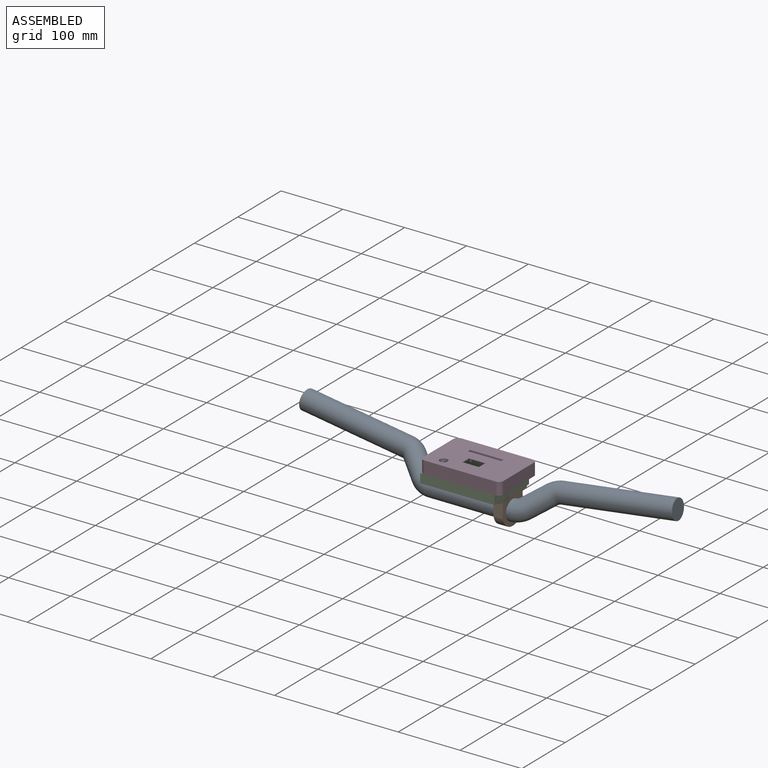
[diagram: assembled view]
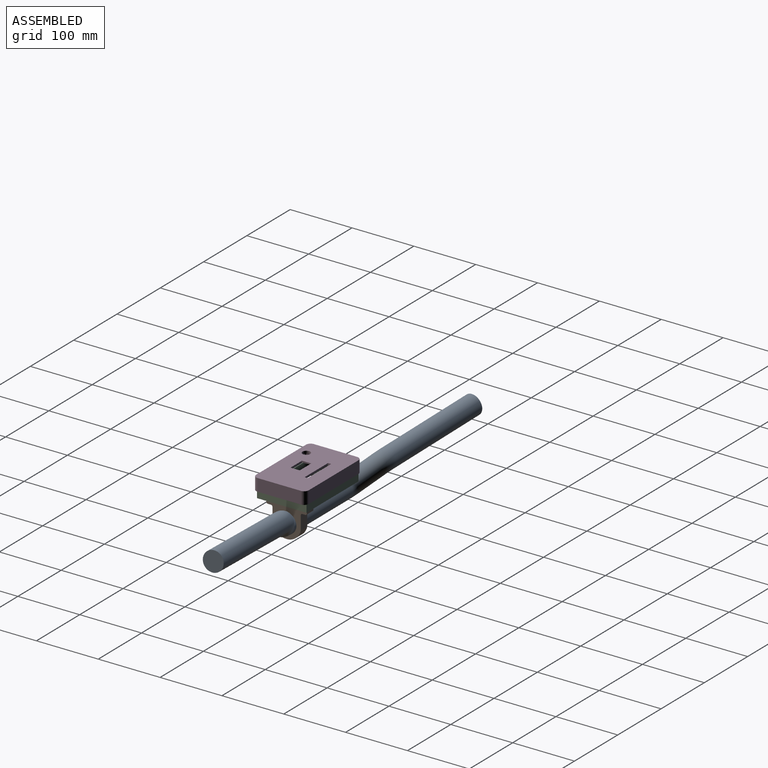
[diagram: assembled view, second angle]
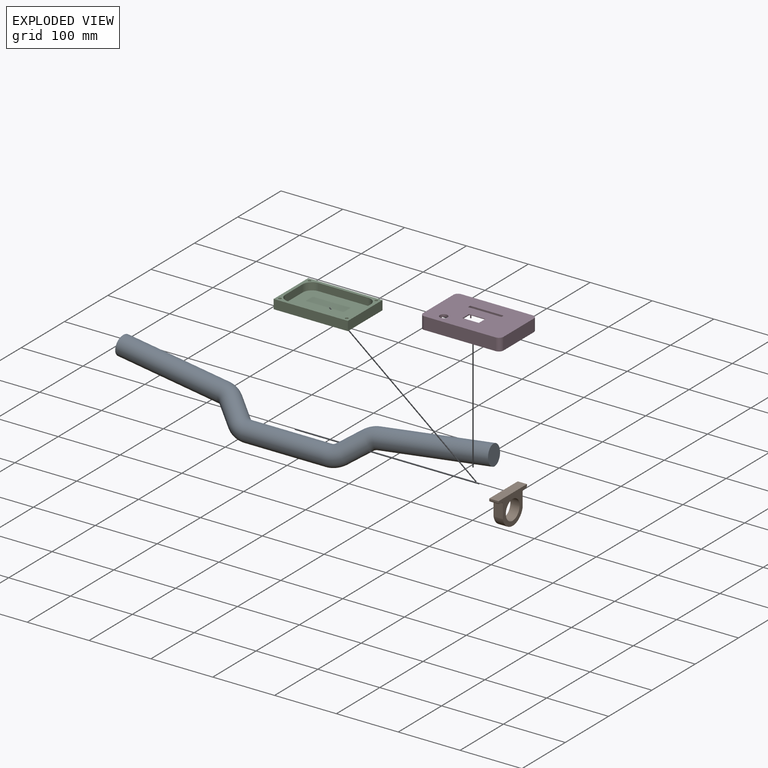
[diagram: exploded view]
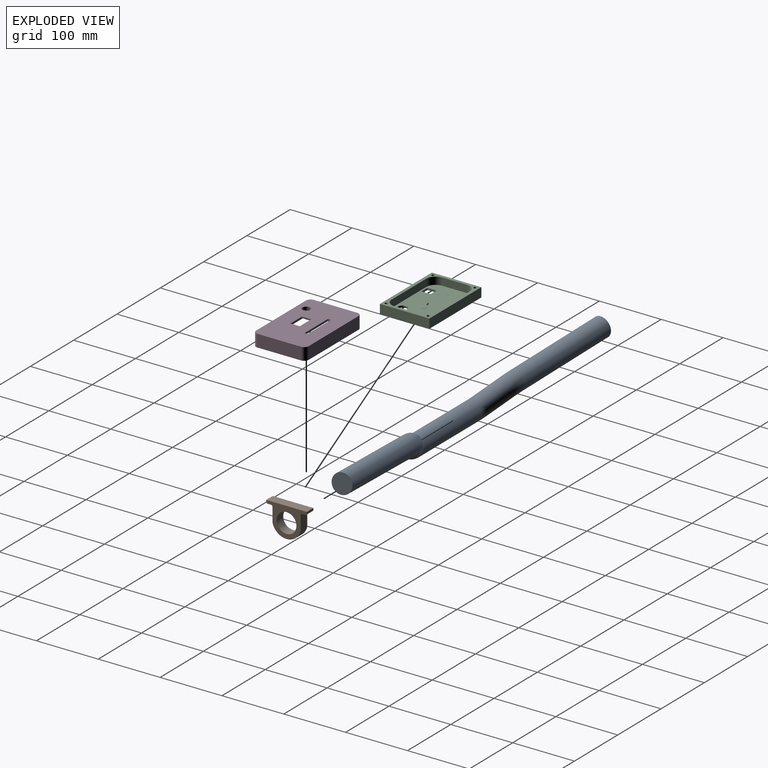
[diagram: exploded view, second angle]
FCSTD DOCUMENT  (FreeCAD 0.20R27319 (Git))
Label: Riserbar
License: All rights reserved
LicenseURL: http://en.wikipedia.org/wiki/All_rights_reserved
objects: Sketcher::SketchObject×6, PartDesign::Body×3, Part::Feature×2, PartDesign::Pocket×2, PartDesign::AdditivePipe×1, Part::FeaturePython×1, PartDesign::Pad×1, PartDesign::AdditiveBox×1, Mesh::Feature×1, PartDesign::Hole×1, App::Part×1, App::Link×1, App::LinkGroup×1
note: 24 computed .brp shape members not serialized (recipe doc carries the construction recipe); baked Part::Feature solids carry a one-line shape summary decoded from their .brp
EXTERNAL_REF file=FirstDraft.FCStd obj=Body002

FEATURE [Sketcher::SketchObject] Sketch  label="Lenker"
  FullyConstrained = true
  MapMode = 5
  Support = -> [XY_Plane]
  sketch-geometry (11):
    g0: LineSegment StartX=-300 StartY=65 StartZ=0 EndX=-125 EndY=41.9608 EndZ=0
    g1: LineSegment StartX=-110.585 StartY=34.8524 StartZ=0 EndX=-83.0555 EndY=7.32233 EndZ=0
    g2: LineSegment StartX=-65.3778 StartY=0 StartZ=0 EndX=65.3778 EndY=0 EndZ=0
    g3: LineSegment StartX=83.0555 StartY=7.32233 StartZ=0 EndX=110.585 EndY=34.8524 EndZ=0
    g4: LineSegment StartX=125 StartY=41.9608 StartZ=0 EndX=300 EndY=65 EndZ=0
    g5: ArcOfCircle CenterX=-128.263 CenterY=17.1747 CenterZ=0 NormalX=0 NormalY=0 NormalZ=1 AngleXU=0 Radius=25 StartAngle=0.785398 EndAngle=1.4399
    g6: ArcOfCircle CenterX=128.263 CenterY=17.1747 CenterZ=0 NormalX=0 NormalY=0 NormalZ=1 AngleXU=0 Radius=25 StartAngle=1.7017 EndAngle=2.35619
    g7: ArcOfCircle CenterX=-65.3778 CenterY=25 CenterZ=0 NormalX=0 NormalY=0 NormalZ=1 AngleXU=0 Radius=25 StartAngle=3.92699 EndAngle=4.71239
    g8: ArcOfCircle CenterX=65.3778 CenterY=25 CenterZ=0 NormalX=0 NormalY=0 NormalZ=1 AngleXU=0 Radius=25 StartAngle=4.71239 EndAngle=5.49779
    g9: LineSegment StartX=300 StartY=65 StartZ=0 EndX=-300 EndY=65 EndZ=0
    g10: LineSegment StartX=-125 StartY=41.9608 StartZ=0 EndX=125 EndY=41.9608 EndZ=0
  constraints (26):
    c: PointOnObject(g-1,g2)
    c: Symmetric(g0,g4,g-2)
    c: DistanceX(g0,g4) = 600
    c: Tangent(g0,g5) = 1.5708
    c: Tangent(g1,g5) = 1.5708
    c: Tangent(g3,g6) = 1.5708
    c: Tangent(g4,g6) = 1.5708
    c: Symmetric(g6,g5,g-2)
    c: Tangent(g1,g7) = -1.5708
    c: Tangent(g2,g7) = -1.5708
    c: Tangent(g2,g8) = -1.5708
    c: Tangent(g3,g8) = -1.5708
    c: Symmetric(g8,g7,g-2)
    c: Horizontal(g2)
    c: Coincident(g9,g4)
    c: Coincident(g9,g0)
    c: Coincident(g10,g0)
    c: Horizontal(g10)
    c: Coincident(g4,g10)
    c: Distance(g5,g1) = 25
    c: DistanceY(g2,g7) = 25
    c: DistanceX(g10,g10) = 250
    c: Angle(g0,g9) = 0.1309
    c: Angle(g3,g2) = 2.35619
    c: DistanceY(g-1,g4) = 65
    c: DistanceX(g2,g2) = 130.756
FEATURE [Sketcher::SketchObject] Sketch001  label="Profil"
  FullyConstrained = true
  MapMode = 5
  Placement = pos=(0,0,0) rot=(0.57735,0.57735,0.57735;2.0944rad)
  Support = -> [YZ_Plane]
  sketch-geometry (1):
    g0: Circle CenterX=0 CenterY=0 CenterZ=0 NormalX=0 NormalY=0 NormalZ=1 AngleXU=0 Radius=15.9
  constraints (2):
    c: Coincident(g0,g-1)
    c: Diameter(g0) = 31.8
FEATURE [PartDesign::AdditivePipe] AdditivePipe
  AuxilleryCurvelinear = true
  AuxillerySpineTangent = false
  Binormal = (0,0,0)
  Mode = 0
  Placement = pos=(0,0,0) rot=(0.57735,0.57735,0.57735;2.0944rad)
  Profile = -> Sketch001
  Spine = -> Sketch
  SpineTangent = false
  Transformation = 0
  Transition = 0
FEATURE [PartDesign::Body] Body  label="Riserbar"
  Group = -> [Sketch,Sketch001,AdditivePipe]
  Origin = -> Origin
  Placement = pos=(0,0,0) rot=(1,0,0;0.785398rad)
  Tip = -> AdditivePipe
FEATURE [Part::Feature] Shell
  Placement = pos=(-64.4,0,0) rot=(0,0,1;0rad)
  shape: bbox 12 x 56.35 x 40 mm, 1930 faces (baked)
FEATURE [Part::FeaturePython] Clone  label="Shell001"  # Draft clone (typed FeaturePython)
  AttacherType = Attacher::AttachEngine3D
  Fuse = false
  Objects = -> [Shell]
  Placement = pos=(48.8,0,0) rot=(0,0,1;0rad)
  Scale = (1,1,1)
FEATURE [Sketcher::SketchObject] Sketch002
  FullyConstrained = true
  MapMode = 5
  Placement = pos=(0,0,0) rot=(0.57735,0.57735,0.57735;2.0944rad)
  Support = -> [YZ_Plane001]
  sketch-geometry (18):
    g0: ArcOfCircle CenterX=0 CenterY=0 CenterZ=0 NormalX=0 NormalY=0 NormalZ=1 AngleXU=0 Radius=23.4 StartAngle=3.35693 EndAngle=6.06785
    g1: LineSegment StartX=-22.8596 StartY=-5 StartZ=0 EndX=-22.8596 EndY=25 EndZ=0
    g2: LineSegment StartX=-32.8596 StartY=25 StartZ=0 EndX=32.8596 EndY=25 EndZ=0
    g3: Circle CenterX=0 CenterY=0 CenterZ=0 NormalX=0 NormalY=0 NormalZ=1 AngleXU=0 Radius=15.9
    g4: LineSegment StartX=22.8596 StartY=-5 StartZ=0 EndX=22.8596 EndY=25 EndZ=0
    g5: LineSegment StartX=-22.8596 StartY=-5 StartZ=0 EndX=22.8596 EndY=-5 EndZ=0
    g6: LineSegment StartX=-22.8596 StartY=-5 StartZ=0 EndX=-22.8596 EndY=17.5 EndZ=0
    g7: LineSegment StartX=-25.3596 StartY=20 StartZ=0 EndX=-30.3596 EndY=20 EndZ=0
    g8: LineSegment StartX=-32.8596 StartY=22.5 StartZ=0 EndX=-32.8596 EndY=25 EndZ=0
    g9: ArcOfCircle CenterX=-25.3596 CenterY=17.5 CenterZ=0 NormalX=0 NormalY=0 NormalZ=1 AngleXU=0 Radius=2.5 StartAngle=0 EndAngle=1.5708
    g10: ArcOfCircle CenterX=-30.3596 CenterY=22.5 CenterZ=0 NormalX=0 NormalY=0 NormalZ=1 AngleXU=0 Radius=2.5 StartAngle=3.14159 EndAngle=4.71239
    g11: GeomPoint X=-32.8596 Y=20 Z=0
    g12: LineSegment StartX=22.8596 StartY=-5 StartZ=0 EndX=22.8596 EndY=17.5 EndZ=0
    g13: ArcOfCircle CenterX=25.3596 CenterY=17.5 CenterZ=0 NormalX=0 NormalY=0 NormalZ=1 AngleXU=0 Radius=2.5 StartAngle=1.5708 EndAngle=3.14159
    g14: LineSegment StartX=25.3596 StartY=20 StartZ=0 EndX=30.3596 EndY=20 EndZ=0
    g15: ArcOfCircle CenterX=30.3596 CenterY=22.5 CenterZ=0 NormalX=0 NormalY=0 NormalZ=1 AngleXU=0 Radius=2.5 StartAngle=4.71239 EndAngle=6.28319
    g16: LineSegment StartX=32.8596 StartY=22.5 StartZ=0 EndX=32.8596 EndY=25 EndZ=0
    g17: LineSegment StartX=0 StartY=-23.4 StartZ=0 EndX=0 EndY=-15.9 EndZ=0
  constraints (45):
    c: Coincident(g0,g-1)
    c: Vertical(g1)
    c: Coincident(g3,g0)
    c: Diameter(g3) = 31.8
    c: Coincident(g1,g0)
    c: Coincident(g4,g0)
    c: Vertical(g4)
    c: Coincident(g5,g0)
    c: Coincident(g5,g0)
    c: Horizontal(g5)
    c: DistanceY(g0,g0) = 5
    c: Coincident(g6,g0)
    c: Horizontal(g7)
    c: Vertical(g8)
    c: Coincident(g2,g8)
    c: PointOnObject(g1,g2)
    c: Tangent(g6,g9) = -1.5708
    c: Tangent(g7,g9) = -1.5708
    c: PointOnObject(g11,g7)
    c: PointOnObject(g11,g8)
    c: Tangent(g7,g10) = 1.5708
    c: Tangent(g8,g10) = 1.5708
    c: PointOnObject(g4,g2)
    c: Horizontal(g14)
    c: Vertical(g16)
    c: Tangent(g12,g13) = 1.5708
    c: Tangent(g14,g13) = 1.5708
    c: Tangent(g14,g15) = -1.5708
    c: Tangent(g16,g15) = -1.5708
    c: Coincident(g16,g2)
    c: PointOnObject(g12,g4)
    c: Coincident(g12,g0)
    c: PointOnObject(g17,g0)
    c: PointOnObject(g17,g3)
    c: Vertical(g17)
    c: PointOnObject(g17,g-2)
    c: DistanceY(g17,g17) = 7.5
    c: Symmetric(g9,g13,g-2)
    c: Symmetric(g2,g2,g-2)
    c: DistanceY(g7,g2) = 5
    c: DistanceX(g2,g6) = 10
    c: DistanceX(g12,g13) = 2.5
    c: DistanceX(g15,g15) = 2.5
    c: Symmetric(g10,g15,g-2)
    c: DistanceY(g0,g2) = 25
FEATURE [PartDesign::Pad] Pad
  Direction = (1,-2e-16,3e-16)
  Length = 15
  Length2 = 100
  Placement = pos=(0,0,0) rot=(0.57735,0.57735,0.57735;2.0944rad)
  Profile = -> Sketch002
  ReferenceAxis = -> Sketch002 [N_Axis]
  Type = 0
FEATURE [PartDesign::Body] Body001  label="Hlaterung - to split"
  Group = -> [Sketch002,Pad]
  Origin = -> Origin001
  Placement = pos=(50,0,0) rot=(1,0,0;0rad)
  Tip = -> Pad
FEATURE [PartDesign::AdditiveBox] Box
  AttacherType = Attacher::AttachEngine3D
  AttachmentOffset = pos=(-60,-46,0) rot=(0,0,1;0rad)
  Height = 15
  Length = 120
  MapMode = 45
  Placement = pos=(-52.5,-46,25) rot=(0,0,1;0rad)
  Support = -> [Pad]
  Width = 80
  expr: .AttachmentOffset.Base.x = -Length / 2
  expr: .AttachmentOffset.Base.y = -Width / 2 - 6mm
FEATURE [Sketcher::SketchObject] Sketch003
  ExternalGeometry = -> [Box]
  FullyConstrained = true
  MapMode = 5
  Placement = pos=(-52.5,-46,40) rot=(0,0,1;0rad)
  Support = -> [Box]
  sketch-geometry (11):
    g0: ArcOfCircle CenterX=20 CenterY=60 CenterZ=0 NormalX=0 NormalY=0 NormalZ=1 AngleXU=0 Radius=15 StartAngle=1.5708 EndAngle=3.14159
    g1: LineSegment StartX=20 StartY=75 StartZ=0 EndX=100 EndY=75 EndZ=0
    g2: ArcOfCircle CenterX=100 CenterY=60 CenterZ=0 NormalX=0 NormalY=0 NormalZ=1 AngleXU=0 Radius=15 StartAngle=1e-16 EndAngle=1.5708
    g3: LineSegment StartX=115 StartY=60 StartZ=0 EndX=115 EndY=20 EndZ=0
    g4: ArcOfCircle CenterX=100 CenterY=20 CenterZ=0 NormalX=0 NormalY=0 NormalZ=1 AngleXU=0 Radius=15 StartAngle=4.71239 EndAngle=6.28319
    g5: LineSegment StartX=100 StartY=5 StartZ=0 EndX=20 EndY=5 EndZ=0
    g6: ArcOfCircle CenterX=20 CenterY=20 CenterZ=0 NormalX=0 NormalY=0 NormalZ=1 AngleXU=0 Radius=15 StartAngle=3.14159 EndAngle=4.71239
    g7: LineSegment StartX=5 StartY=20 StartZ=0 EndX=5 EndY=60 EndZ=0
    g8: GeomPoint X=5 Y=75 Z=0
    g9: GeomPoint X=115 Y=5 Z=0
    g10: GeomPoint X=60 Y=40 Z=0
  constraints (23):
    c: Tangent(g0,g1) = 1.5708
    c: Tangent(g1,g2) = 1.5708
    c: Tangent(g2,g3) = 1.5708
    c: Tangent(g3,g4) = 1.5708
    c: Tangent(g4,g5) = 1.5708
    c: Tangent(g5,g6) = 1.5708
    c: Tangent(g6,g7) = 1.5708
    c: Tangent(g7,g0) = 1.5708
    c: Horizontal(g1)
    c: Horizontal(g5)
    c: Vertical(g3)
    c: Vertical(g7)
    c: Equal(g0,g2)
    c: PointOnObject(g8,g1)
    c: PointOnObject(g8,g7)
    c: PointOnObject(g9,g3)
    c: PointOnObject(g9,g5)
    c: Symmetric(g-1,g-3,g10)
    c: Symmetric(g2,g6,g10)
    c: Symmetric(g0,g4,g10)
    c: DistanceX(g2,g-3) = 5
    c: DistanceY(g1,g-3) = 5
    c: DistanceY(g2,g1) = 15
FEATURE [PartDesign::Pocket] Pocket
  BaseFeature = -> Box
  Direction = (1,1,1)
  Length = 12
  Length2 = 100
  Placement = pos=(-52.5,-46,25) rot=(0,0,1;0rad)
  Profile = -> Sketch003
  Type = 0
FEATURE [Mesh::Feature] usb_type_a_2_0_dual_receptacle
  Placement = pos=(-24,-30,41) rot=(1,0,0;1.5708rad)
FEATURE [Part::Feature] PG7
  Placement = pos=(40,-29,32) rot=(0,1,0;1.5708rad)
  shape: bbox 17.71 x 28 x 28.93 mm, 130 faces, 0 solids (baked)
FEATURE [Sketcher::SketchObject] Sketch004
  ExternalGeometry = -> [Pocket]
  FullyConstrained = true
  MapMode = 5
  Placement = pos=(-52.5,-46,25) rot=(1,0,0;3.14159rad)
  Support = -> [Pocket]
  sketch-geometry (9):
    g0: Circle CenterX=6 CenterY=-6 CenterZ=0 NormalX=0 NormalY=0 NormalZ=1 AngleXU=0 Radius=3
    g1: Circle CenterX=114 CenterY=-6 CenterZ=0 NormalX=0 NormalY=0 NormalZ=1 AngleXU=0 Radius=3
    g2: Circle CenterX=6 CenterY=-74 CenterZ=0 NormalX=0 NormalY=0 NormalZ=1 AngleXU=0 Radius=3
    g3: Circle CenterX=114 CenterY=-74 CenterZ=0 NormalX=0 NormalY=0 NormalZ=1 AngleXU=0 Radius=3
    g4: GeomPoint X=60 Y=-40 Z=0
    g5: LineSegment StartX=6 StartY=-6 StartZ=0 EndX=114 EndY=-6 EndZ=0
    g6: LineSegment StartX=114 StartY=-6 StartZ=0 EndX=114 EndY=-74 EndZ=0
    g7: LineSegment StartX=114 StartY=-74 StartZ=0 EndX=6 EndY=-74 EndZ=0
    g8: LineSegment StartX=6 StartY=-74 StartZ=0 EndX=6 EndY=-6 EndZ=0
  constraints (20):
    c: Symmetric(g1,g2,g4)
    c: Symmetric(g3,g0,g4)
    c: Equal(g0,g1)
    c: Equal(g1,g3)
    c: Equal(g3,g2)
    c: Diameter(g2) = 6
    c: Symmetric(g-4,g-1,g4)
    c: Coincident(g5,g6)
    c: Coincident(g6,g7)
    c: Coincident(g7,g8)
    c: Coincident(g8,g5)
    c: Horizontal(g5)
    c: Horizontal(g7)
    c: Vertical(g6)
    c: Vertical(g8)
    c: Coincident(g5,g0)
    c: Coincident(g6,g3)
    c: Coincident(g1,g5)
    c: DistanceX(g-4,g2) = 6
    c: DistanceY(g-4,g2) = 6
FEATURE [PartDesign::Hole] Hole
  BaseFeature = -> Pocket
  CustomThreadClearance = 0
  Depth = 25
  DepthType = 0
  Diameter = 4.5
  DrillForDepth = false
  DrillPoint = 1
  DrillPointAngle = 118
  HoleCutCountersinkAngle = 90
  HoleCutCustomValues = false
  HoleCutDepth = 4.4
  HoleCutDiameter = 8
  HoleCutType = 11
  ModelThread = false
  Placement = pos=(-52.5,-46,25) rot=(0,0,1;0rad)
  Profile = -> Sketch004
  Tapered = false
  TaperedAngle = 90
  ThreadClass = 0
  ThreadDepth = 25
  ThreadDepthType = 0
  ThreadDirection = 0
  ThreadFit = 0
  ThreadSize = 11
  ThreadType = 1
  Threaded = false
  UseCustomThreadClearance = false
FEATURE [Sketcher::SketchObject] Sketch005
  FullyConstrained = false
  MapMode = 5
  Placement = pos=(-52.5,-46,25) rot=(1,0,0;3.14159rad)
  Support = -> [Hole]
  sketch-geometry (6):
    g0: LineSegment StartX=21.789 StartY=-22.6898 StartZ=0 EndX=35.289 EndY=-22.6898 EndZ=0
    g1: LineSegment StartX=35.289 StartY=-22.6898 StartZ=0 EndX=35.289 EndY=-8.18982 EndZ=0
    g2: LineSegment StartX=35.289 StartY=-8.18982 StartZ=0 EndX=21.789 EndY=-8.18982 EndZ=0
    g3: LineSegment StartX=21.789 StartY=-8.18982 StartZ=0 EndX=21.789 EndY=-22.6898 EndZ=0
    g4: Circle CenterX=92.5 CenterY=-16.9989 CenterZ=0 NormalX=0 NormalY=0 NormalZ=1 AngleXU=0 Radius=7.5
    g5: Circle CenterX=92.5 CenterY=-16.9989 CenterZ=0 NormalX=0 NormalY=0 NormalZ=1 AngleXU=0 Radius=1.38
  constraints (13):
    c: Coincident(g0,g1)
    c: Coincident(g1,g2)
    c: Coincident(g2,g3)
    c: Coincident(g3,g0)
    c: Horizontal(g0)
    c: Horizontal(g2)
    c: Vertical(g1)
    c: Vertical(g3)
    c: DistanceY(g3,g3) = 14.5
    c: DistanceX(g2,g2) = 13.5
    c: Diameter(g4) = 15
    c: Coincident(g5,g4)
    c: Diameter(g5) = 2.76
FEATURE [PartDesign::Pocket] Pocket001
  BaseFeature = -> Hole
  Direction = (1,1,1)
  Length = 5
  Length2 = 100
  Placement = pos=(-52.5,-46,25) rot=(0,0,1;0rad)
  Profile = -> Sketch005
  Type = 0
FEATURE [PartDesign::Body] Body003
  Group = -> [Box,Sketch003,Pocket,Sketch004,Hole,Sketch005,Pocket001]
  Origin = -> Origin003
  Tip = -> Pocket001
FEATURE [App::Part] Part
  Origin = -> Origin004
FEATURE [App::Link] Link  label="Front"
  LinkPlacement = pos=(-53,-46,40) rot=(0,0,1;0rad)
  LinkedObject = -> <external FirstDraft.FCStd>#Body002
  Placement = pos=(-53,-46,40) rot=(0,0,1;0rad)
FEATURE [App::LinkGroup] LinkGroup
  ElementList = -> [Link]
  LinkMode = 1

RESOLVED EXTERNAL PARTS (link-assembly join: the EXTERNAL_REF files above that resolve inside this repo's crawl, each included once):
---- part FirstDraft.FCStd = doc fcstd_812e2595e072 (50828 chars; too large to inline — full recipe in that document) ----
